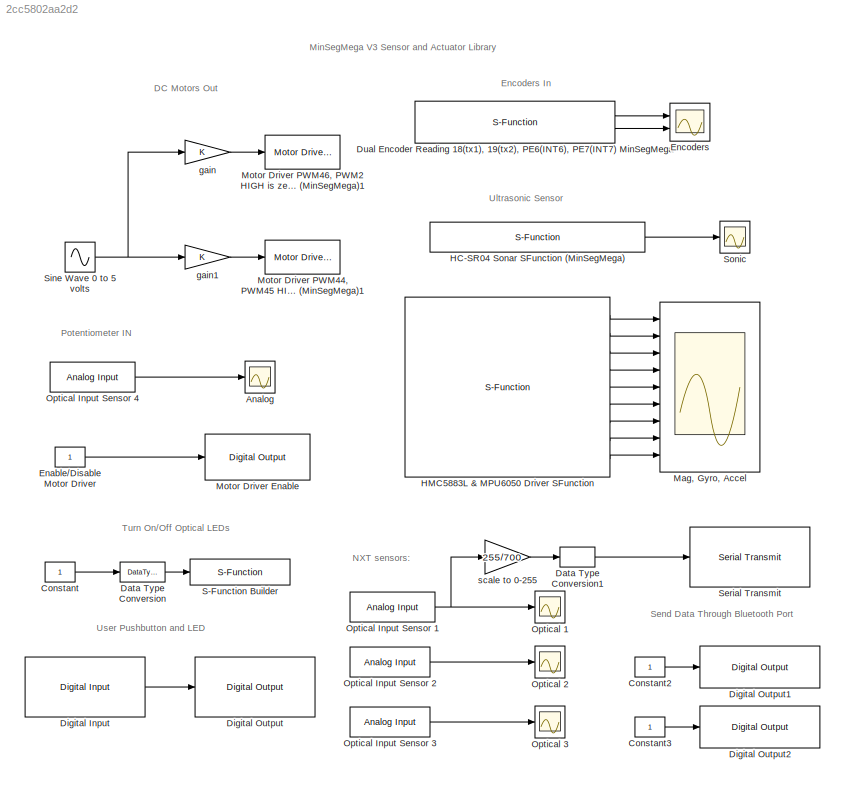
MODEL slx_2cc5802aa2d2
KIND model
BLOCK [Scope] Analog
  DataFormat = StructureWithTime
  Floating = off
  NumInputPorts = 1
  Ports = [1]
  SampleTime = 0
  SaveName = ScopeData6
  ShowLegends = off
  TimeRange = 30
  YMax = 850
  YMin = 250
BLOCK [Constant] Constant
  SampleTime = -1
BLOCK [Constant] Constant2
  SampleTime = -1
BLOCK [Constant] Constant3
  SampleTime = -1
BLOCK [DataTypeConversion] Data Type Conversion
  OutDataTypeStr = boolean
  RndMeth = Floor
  SaturateOnIntegerOverflow = off
BLOCK [DataTypeConversion] Data Type Conversion1
  OutDataTypeStr = uint8
  RndMeth = Floor
  SaturateOnIntegerOverflow = off
BLOCK [Reference] Digital Input  REF=arduinolib/Digital Input
  Ports = [0, 1]
  SourceBlock = arduinolib/Digital Input
  SourceType = Arduino Digital Input
  pinNumber = 53
  sampleTime = -1
BLOCK [Reference] Digital Output  REF=arduinolib/Digital Output
  Ports = [1]
  SourceBlock = arduinolib/Digital Output
  SourceType = Arduino Digital Output
  pinNumber = 49
BLOCK [Reference] Digital Output1  REF=arduinolib/Digital Output
  Ports = [1]
  SourceBlock = arduinolib/Digital Output
  SourceType = Arduino Digital Output
  pinNumber = 25
BLOCK [Reference] Digital Output2  REF=arduinolib/Digital Output
  Ports = [1]
  SourceBlock = arduinolib/Digital Output
  SourceType = Arduino Digital Output
  pinNumber = 48
BLOCK [S-Function] Dual Encoder Reading 18(tx1), 19(tx2), PE6(INT6), PE7(INT7) MinSegMega 
  CopyFcn = set_param(gcbh,'LinkStatus','none')
  EnableBusSupport = off
  FunctionName = sf_QuadEncoder_18_19_INT6_INT7
  InitFcn = try, set_param(gcb,'FunctionName','sf_QuadEncoder_18_19_INT6_INT7'), end
  OpenFcn = sfunctionwizard(gcbh)
  Parameters = uint8([0 1]),uint8([18 6]),uint8([19 7])
  Ports = [0, 2]
  PreSaveFcn = try, set_param(gcb,'FunctionName','sf_QuadEncoder_18_19_INT6_INT7'), end
  SFunctionModules = sf_QuadEncoder_18_19_INT6_INT7_wrapper
BLOCK [Constant] Enable//Disable Motor Driver
  SampleTime = -1
BLOCK [Scope] Encoders
  DataFormat = StructureWithTime
  Floating = off
  NumInputPorts = 2
  Ports = [2]
  SampleTime = 0
  ShowLegends = off
  TimeRange = 10
  YMax = 10250~1
  YMin = 7750~-1
BLOCK [S-Function] HC-SR04 Sonar SFunction (MinSegMega)
  CopyFcn = set_param(gcbh,'LinkStatus','none')
  EnableBusSupport = off
  FunctionName = sf_HCSR04_16_17
  InitFcn = try, set_param(gcb,'FunctionName','sf_HCSR04_16_17'), end
  OpenFcn = sfunctionwizard(gcbh)
  Ports = [0, 1]
  PreSaveFcn = try, set_param(gcb,'FunctionName','sf_HCSR04_16_17'), end
  SFunctionModules = sf_HCSR04_16_17_wrapper
BLOCK [S-Function] HMC5883L & MPU6050 Driver SFunction
  CopyFcn = set_param(gcbh,'LinkStatus','none')
  EnableBusSupport = off
  FunctionName = sf_HMC5883L_MPU6050
  InitFcn = try, set_param(gcb,'FunctionName','sf_HMC5883L_MPU6050'), end
  OpenFcn = sfunctionwizard(gcbh)
  Ports = [0, 9]
  PreSaveFcn = try, set_param(gcb,'FunctionName','sf_HMC5883L_MPU6050'), end
  SFunctionModules = sf_HMC5883L_MPU6050_wrapper
BLOCK [Scope] Mag, Gyro, Accel
  DataFormat = StructureWithTime
  Floating = off
  NumInputPorts = 9
  Ports = [9]
  SampleTime = 0
  SaveName = ScopeData1
  ShowLegends = off
  TimeRange = 10
  YMax = -250~1400~150~40000~20000~30000~8000~12500~20000
  YMin = -600~1050~-100~-40000~-25000~-40000~-3000~-10000~11000
BLOCK [Reference] Motor Driver Enable  REF=arduinolib/Digital Output
  Ports = [1]
  SourceBlock = arduinolib/Digital Output
  SourceType = Arduino Digital Output
  pinNumber = 42
BLOCK [Reference] Motor Driver PWM44, PWM45 HIGH is zero speed (MinSegMega)1  REF=MinSegLibrary_MinSegMega/Motor Driver
PWM44, PWM45
HIGH is zero speed
(MinSegMega)
  Ports = [1]
  SourceBlock = MinSegLibrary_MinSegMega/Motor Driver\nPWM44, PWM45\nHIGH is zero speed\n(MinSegMega)
  SourceType = SubSystem
BLOCK [Reference] Motor Driver PWM46, PWM2 HIGH is zero speed (MinSegMega)1  REF=MinSegLibrary_MinSegMega/Motor Driver
PWM46, PWM2
HIGH is zero speed
(MinSegMega)
  Ports = [1]
  SourceBlock = MinSegLibrary_MinSegMega/Motor Driver\nPWM46, PWM2\nHIGH is zero speed\n(MinSegMega)
  SourceType = SubSystem
BLOCK [Scope] Optical 1
  DataFormat = StructureWithTime
  Floating = off
  NumInputPorts = 1
  Ports = [1]
  SampleTime = 0
  SaveName = ScopeData4
  ShowLegends = off
  TimeRange = 30
  YMax = 775
  YMin = 450
BLOCK [Scope] Optical 2
  DataFormat = StructureWithTime
  Floating = off
  NumInputPorts = 1
  Ports = [1]
  SampleTime = 0
  SaveName = ScopeData3
  ShowLegends = off
  TimeRange = 30
  YMax = 625
  YMin = 325
BLOCK [Scope] Optical 3
  DataFormat = StructureWithTime
  Floating = off
  NumInputPorts = 1
  Ports = [1]
  SampleTime = 0
  SaveName = ScopeData2
  ShowLegends = off
  TimeRange = 30
  YMax = 800
  YMin = 300
BLOCK [Reference] Optical Input Sensor 1  REF=arduinolib/Analog Input
  Ports = [0, 1]
  SourceBlock = arduinolib/Analog Input
  SourceType = Arduino Analog Input
  pinNumber = 10
  sampleTime = -1
BLOCK [Reference] Optical Input Sensor 2  REF=arduinolib/Analog Input
  Ports = [0, 1]
  SourceBlock = arduinolib/Analog Input
  SourceType = Arduino Analog Input
  pinNumber = 11
  sampleTime = -1
BLOCK [Reference] Optical Input Sensor 3  REF=arduinolib/Analog Input
  Ports = [0, 1]
  SourceBlock = arduinolib/Analog Input
  SourceType = Arduino Analog Input
  pinNumber = 7
  sampleTime = -1
BLOCK [Reference] Optical Input Sensor 4  REF=arduinolib/Analog Input
  Ports = [0, 1]
  SourceBlock = arduinolib/Analog Input
  SourceType = Arduino Analog Input
  pinNumber = 13
  sampleTime = -1
BLOCK [S-Function] S-Function Builder
  CopyFcn = set_param(gcbh,'LinkStatus','none')
  EnableBusSupport = off
  FunctionName = sfcn_A9_out
  InitFcn = try, set_param(gcb,'FunctionName','sfcn_A9_out'), end
  OpenFcn = sfunctionwizard(gcbh)
  Parameters = uint8(9)
  Ports = [1]
  PreSaveFcn = try, set_param(gcb,'FunctionName','sfcn_A9_out'), end
  SFunctionModules = sfcn_A9_out_wrapper
BLOCK [Reference] Serial Transmit  REF=arduinolib/Serial Transmit
  Ports = [1]
  SourceBlock = arduinolib/Serial Transmit
  SourceType = Arduino Serial Transmit
  portNumber = 3
BLOCK [Sin] Sine Wave 0 to 5 volts
  Amplitude = 5
  Frequency = 50*2*pi
  Ports = [0, 1]
  SampleTime = .1
  Samples = 30
  SineType = Sample based
BLOCK [Scope] Sonic
  DataFormat = StructureWithTime
  Floating = off
  NumInputPorts = 1
  Ports = [1]
  SampleTime = 0
  SaveName = ScopeData7
  ShowLegends = off
  TimeRange = 30
  YMax = 55
  YMin = 0
BLOCK [Gain] gain
  OutDataTypeStr = int16
  ParamDataTypeStr = Inherit: Inherit via internal rule
  SaturateOnIntegerOverflow = off
BLOCK [Gain] gain1
  OutDataTypeStr = int16
  ParamDataTypeStr = Inherit: Inherit via internal rule
  SaturateOnIntegerOverflow = off
BLOCK [Gain] scale to 0-255
  Gain = 255/700
  OutDataTypeStr = int16
  ParamDataTypeStr = Inherit: Inherit via internal rule
  SaturateOnIntegerOverflow = off
ANNOTATION (root): DC Motors Out
ANNOTATION (root): Encoders In
ANNOTATION (root): MinSegMega V3 Sensor and Actuator Library
ANNOTATION (root): NXT sensors:
ANNOTATION (root): Potentiometer IN
ANNOTATION (root): Send Data Through Bluetooth Port
ANNOTATION (root): Turn On/Off Optical LEDs
ANNOTATION (root): Ultrasonic Sensor
ANNOTATION (root): User Pushbutton and LED
LINE Constant2:1 -> Digital Output1:1
LINE Constant3:1 -> Digital Output2:1
LINE Constant:1 -> Data Type Conversion:1
LINE Data Type Conversion1:1 -> Serial Transmit:1
LINE Data Type Conversion:1 -> S-Function Builder:1
LINE Digital Input:1 -> Digital Output:1
LINE Dual Encoder Reading 18(tx1), 19(tx2), PE6(INT6), PE7(INT7) MinSegMega :1 -> Encoders:1
LINE Dual Encoder Reading 18(tx1), 19(tx2), PE6(INT6), PE7(INT7) MinSegMega :2 -> Encoders:2
LINE Enable//Disable Motor Driver:1 -> Motor Driver Enable:1
LINE HC-SR04 Sonar SFunction (MinSegMega):1 -> Sonic:1
LINE HMC5883L & MPU6050 Driver SFunction:1 -> Mag, Gyro, Accel:1
LINE HMC5883L & MPU6050 Driver SFunction:2 -> Mag, Gyro, Accel:2
LINE HMC5883L & MPU6050 Driver SFunction:3 -> Mag, Gyro, Accel:3
LINE HMC5883L & MPU6050 Driver SFunction:4 -> Mag, Gyro, Accel:4
LINE HMC5883L & MPU6050 Driver SFunction:5 -> Mag, Gyro, Accel:5
LINE HMC5883L & MPU6050 Driver SFunction:6 -> Mag, Gyro, Accel:6
LINE HMC5883L & MPU6050 Driver SFunction:7 -> Mag, Gyro, Accel:7
LINE HMC5883L & MPU6050 Driver SFunction:8 -> Mag, Gyro, Accel:8
LINE HMC5883L & MPU6050 Driver SFunction:9 -> Mag, Gyro, Accel:9
NET Optical Input Sensor 1:1 -> Optical 1:1, scale to 0-255:1
LINE Optical Input Sensor 2:1 -> Optical 2:1
LINE Optical Input Sensor 3:1 -> Optical 3:1
LINE Optical Input Sensor 4:1 -> Analog:1
NET Sine Wave 0 to 5 volts:1 -> gain1:1, gain:1
LINE gain1:1 -> Motor Driver PWM44, PWM45 HIGH is zero speed (MinSegMega)1:1
LINE gain:1 -> Motor Driver PWM46, PWM2 HIGH is zero speed (MinSegMega)1:1
LINE scale to 0-255:1 -> Data Type Conversion1:1
note: NET lines group one-source signal fan-out (src -> all destinations, sorted); 1:1 wires keep LINE
